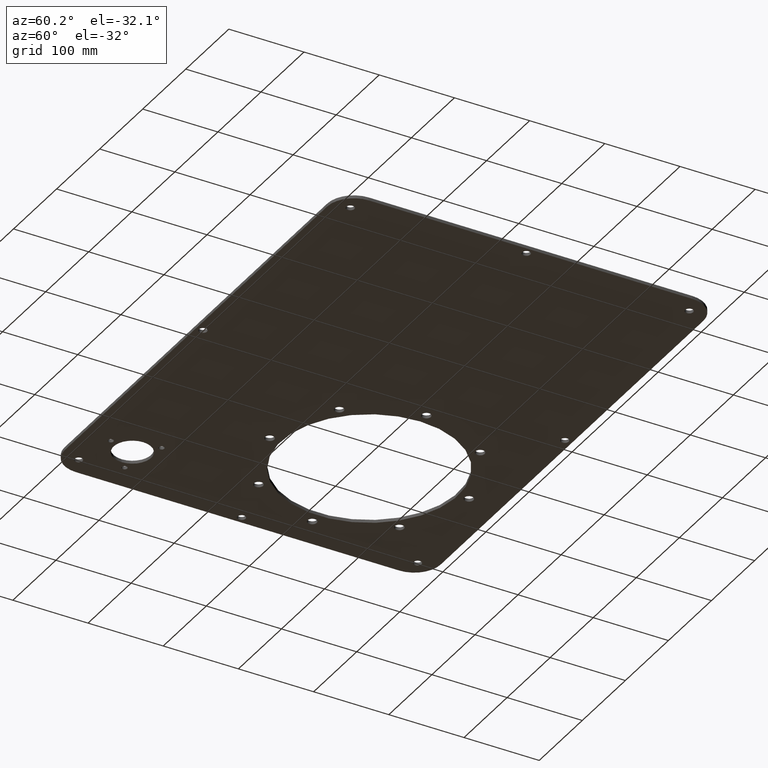
[diagram: clean part render]
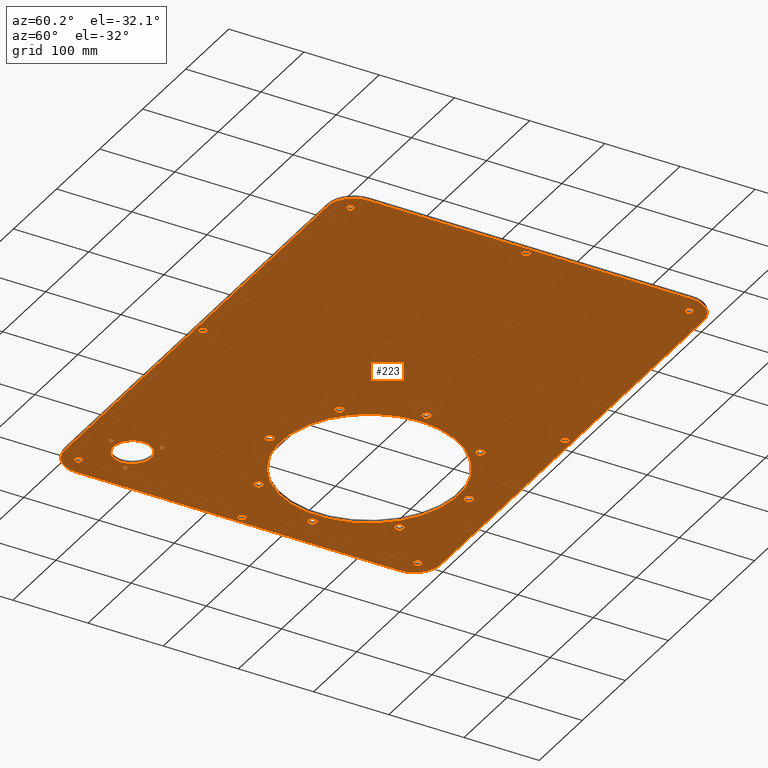
[diagram: same view with one face highlighted and labeled with its STEP entity id]
A machine part, auxiliary view. The second image highlights one B-rep face of the part: STEP entity #223.
In plain terms, the highlighted planar face has unit normal (0, 0, 1).
Its self-contained STEP definition (entity closure, byte-faithful):
#97=FACE_BOUND('',#313,.T.);
#98=FACE_BOUND('',#314,.T.);
#99=FACE_BOUND('',#315,.T.);
#100=FACE_BOUND('',#316,.T.);
#101=FACE_BOUND('',#317,.T.);
#102=FACE_BOUND('',#318,.T.);
#103=FACE_BOUND('',#319,.T.);
#104=FACE_BOUND('',#320,.T.);
#105=FACE_BOUND('',#321,.T.);
#106=FACE_BOUND('',#322,.T.);
#107=FACE_BOUND('',#323,.T.);
#108=FACE_BOUND('',#324,.T.);
#109=FACE_BOUND('',#325,.T.);
#110=FACE_BOUND('',#326,.T.);
#111=FACE_BOUND('',#327,.T.);
#112=FACE_BOUND('',#328,.T.);
#113=FACE_BOUND('',#329,.T.);
#114=FACE_BOUND('',#330,.T.);
#115=FACE_BOUND('',#331,.T.);
#116=FACE_BOUND('',#332,.T.);
#117=FACE_BOUND('',#333,.T.);
#143=CIRCLE('',#624,35.);
#145=CIRCLE('',#628,35.);
#147=CIRCLE('',#632,35.);
#150=CIRCLE('',#637,5.25);
#152=CIRCLE('',#640,5.25);
#154=CIRCLE('',#643,6.);
#156=CIRCLE('',#646,6.);
#158=CIRCLE('',#649,3.5);
#160=CIRCLE('',#652,25.);
#162=CIRCLE('',#655,6.);
#164=CIRCLE('',#658,118.);
#166=CIRCLE('',#661,3.5);
#168=CIRCLE('',#664,3.5);
#170=CIRCLE('',#667,6.);
#172=CIRCLE('',#670,5.25);
#174=CIRCLE('',#673,5.25);
#176=CIRCLE('',#676,5.25);
#178=CIRCLE('',#679,6.);
#180=CIRCLE('',#682,6.);
#182=CIRCLE('',#685,6.);
#184=CIRCLE('',#688,6.);
#186=CIRCLE('',#691,5.25);
#188=CIRCLE('',#694,5.25);
#189=CIRCLE('',#696,35.);
#192=CIRCLE('',#700,5.25);
#223=ADVANCED_FACE('',(#239,#97,#98,#99,#100,#101,#102,#103,#104,#105,#106,
#107,#108,#109,#110,#111,#112,#113,#114,#115,#116,#117),#229,.F.);
#229=PLANE('',#703);
#239=FACE_OUTER_BOUND('',#312,.T.);
#312=EDGE_LOOP('',(#437,#438,#439,#440,#441,#442,#443,#444));
#313=EDGE_LOOP('',(#445));
#314=EDGE_LOOP('',(#446));
#315=EDGE_LOOP('',(#447));
#316=EDGE_LOOP('',(#448));
#317=EDGE_LOOP('',(#449));
#318=EDGE_LOOP('',(#450));
#319=EDGE_LOOP('',(#451));
#320=EDGE_LOOP('',(#452));
#321=EDGE_LOOP('',(#453));
#322=EDGE_LOOP('',(#454));
#323=EDGE_LOOP('',(#455));
#324=EDGE_LOOP('',(#456));
#325=EDGE_LOOP('',(#457));
#326=EDGE_LOOP('',(#458));
#327=EDGE_LOOP('',(#459));
#328=EDGE_LOOP('',(#460));
#329=EDGE_LOOP('',(#461));
#330=EDGE_LOOP('',(#462));
#331=EDGE_LOOP('',(#463));
#332=EDGE_LOOP('',(#464));
#333=EDGE_LOOP('',(#465));
#437=ORIENTED_EDGE('',*,*,#524,.F.);
#438=ORIENTED_EDGE('',*,*,#586,.F.);
#439=ORIENTED_EDGE('',*,*,#543,.F.);
#440=ORIENTED_EDGE('',*,*,#540,.F.);
#441=ORIENTED_EDGE('',*,*,#537,.F.);
#442=ORIENTED_EDGE('',*,*,#534,.F.);
#443=ORIENTED_EDGE('',*,*,#531,.F.);
#444=ORIENTED_EDGE('',*,*,#528,.F.);
#445=ORIENTED_EDGE('',*,*,#585,.T.);
#446=ORIENTED_EDGE('',*,*,#583,.F.);
#447=ORIENTED_EDGE('',*,*,#581,.T.);
#448=ORIENTED_EDGE('',*,*,#579,.T.);
#449=ORIENTED_EDGE('',*,*,#577,.T.);
#450=ORIENTED_EDGE('',*,*,#575,.T.);
#451=ORIENTED_EDGE('',*,*,#573,.T.);
#452=ORIENTED_EDGE('',*,*,#571,.F.);
#453=ORIENTED_EDGE('',*,*,#569,.F.);
#454=ORIENTED_EDGE('',*,*,#567,.T.);
#455=ORIENTED_EDGE('',*,*,#565,.F.);
#456=ORIENTED_EDGE('',*,*,#563,.F.);
#457=ORIENTED_EDGE('',*,*,#561,.T.);
#458=ORIENTED_EDGE('',*,*,#559,.T.);
#459=ORIENTED_EDGE('',*,*,#557,.F.);
#460=ORIENTED_EDGE('',*,*,#555,.F.);
#461=ORIENTED_EDGE('',*,*,#553,.T.);
#462=ORIENTED_EDGE('',*,*,#551,.T.);
#463=ORIENTED_EDGE('',*,*,#549,.F.);
#464=ORIENTED_EDGE('',*,*,#547,.T.);
#465=ORIENTED_EDGE('',*,*,#589,.T.);
#466=VERTEX_POINT('',#886);
#467=VERTEX_POINT('',#887);
#470=VERTEX_POINT('',#895);
#472=VERTEX_POINT('',#901);
#474=VERTEX_POINT('',#907);
#476=VERTEX_POINT('',#913);
#478=VERTEX_POINT('',#919);
#480=VERTEX_POINT('',#925);
#483=VERTEX_POINT('',#933);
#485=VERTEX_POINT('',#938);
#487=VERTEX_POINT('',#943);
#489=VERTEX_POINT('',#948);
#491=VERTEX_POINT('',#953);
#493=VERTEX_POINT('',#958);
#495=VERTEX_POINT('',#963);
#497=VERTEX_POINT('',#968);
#499=VERTEX_POINT('',#973);
#501=VERTEX_POINT('',#978);
#503=VERTEX_POINT('',#983);
#505=VERTEX_POINT('',#988);
#507=VERTEX_POINT('',#993);
#509=VERTEX_POINT('',#998);
#511=VERTEX_POINT('',#1003);
#513=VERTEX_POINT('',#1008);
#515=VERTEX_POINT('',#1013);
#517=VERTEX_POINT('',#1018);
#519=VERTEX_POINT('',#1023);
#521=VERTEX_POINT('',#1028);
#523=VERTEX_POINT('',#1036);
#524=EDGE_CURVE('',#466,#467,#590,.T.);
#528=EDGE_CURVE('',#467,#470,#143,.T.);
#531=EDGE_CURVE('',#470,#472,#595,.T.);
#534=EDGE_CURVE('',#472,#474,#145,.T.);
#537=EDGE_CURVE('',#474,#476,#599,.T.);
#540=EDGE_CURVE('',#476,#478,#147,.T.);
#543=EDGE_CURVE('',#478,#480,#603,.T.);
#547=EDGE_CURVE('',#483,#483,#150,.T.);
#549=EDGE_CURVE('',#485,#485,#152,.T.);
#551=EDGE_CURVE('',#487,#487,#154,.T.);
#553=EDGE_CURVE('',#489,#489,#156,.T.);
#555=EDGE_CURVE('',#491,#491,#158,.T.);
#557=EDGE_CURVE('',#493,#493,#160,.T.);
#559=EDGE_CURVE('',#495,#495,#162,.T.);
#561=EDGE_CURVE('',#497,#497,#164,.T.);
#563=EDGE_CURVE('',#499,#499,#166,.T.);
#565=EDGE_CURVE('',#501,#501,#168,.T.);
#567=EDGE_CURVE('',#503,#503,#170,.T.);
#569=EDGE_CURVE('',#505,#505,#172,.T.);
#571=EDGE_CURVE('',#507,#507,#174,.T.);
#573=EDGE_CURVE('',#509,#509,#176,.T.);
#575=EDGE_CURVE('',#511,#511,#178,.T.);
#577=EDGE_CURVE('',#513,#513,#180,.T.);
#579=EDGE_CURVE('',#515,#515,#182,.T.);
#581=EDGE_CURVE('',#517,#517,#184,.T.);
#583=EDGE_CURVE('',#519,#519,#186,.T.);
#585=EDGE_CURVE('',#521,#521,#188,.T.);
#586=EDGE_CURVE('',#480,#466,#189,.T.);
#589=EDGE_CURVE('',#523,#523,#192,.T.);
#590=LINE('',#885,#606);
#595=LINE('',#900,#611);
#599=LINE('',#912,#615);
#603=LINE('',#924,#619);
#606=VECTOR('',#706,1.);
#611=VECTOR('',#719,1.);
#615=VECTOR('',#731,1.);
#619=VECTOR('',#743,1.);
#624=AXIS2_PLACEMENT_3D('',#894,#712,#713);
#628=AXIS2_PLACEMENT_3D('',#906,#724,#725);
#632=AXIS2_PLACEMENT_3D('',#918,#736,#737);
#637=AXIS2_PLACEMENT_3D('',#932,#750,#751);
#640=AXIS2_PLACEMENT_3D('',#937,#756,#757);
#643=AXIS2_PLACEMENT_3D('',#942,#762,#763);
#646=AXIS2_PLACEMENT_3D('',#947,#768,#769);
#649=AXIS2_PLACEMENT_3D('',#952,#774,#775);
#652=AXIS2_PLACEMENT_3D('',#957,#780,#781);
#655=AXIS2_PLACEMENT_3D('',#962,#786,#787);
#658=AXIS2_PLACEMENT_3D('',#967,#792,#793);
#661=AXIS2_PLACEMENT_3D('',#972,#798,#799);
#664=AXIS2_PLACEMENT_3D('',#977,#804,#805);
#667=AXIS2_PLACEMENT_3D('',#982,#810,#811);
#670=AXIS2_PLACEMENT_3D('',#987,#816,#817);
#673=AXIS2_PLACEMENT_3D('',#992,#822,#823);
#676=AXIS2_PLACEMENT_3D('',#997,#828,#829);
#679=AXIS2_PLACEMENT_3D('',#1002,#834,#835);
#682=AXIS2_PLACEMENT_3D('',#1007,#840,#841);
#685=AXIS2_PLACEMENT_3D('',#1012,#846,#847);
#688=AXIS2_PLACEMENT_3D('',#1017,#852,#853);
#691=AXIS2_PLACEMENT_3D('',#1022,#858,#859);
#694=AXIS2_PLACEMENT_3D('',#1027,#864,#865);
#696=AXIS2_PLACEMENT_3D('',#1030,#868,#869);
#700=AXIS2_PLACEMENT_3D('',#1035,#876,#877);
#703=AXIS2_PLACEMENT_3D('',#1039,#882,#883);
#706=DIRECTION('',(0.,1.,0.));
#712=DIRECTION('',(0.,0.,1.));
#713=DIRECTION('',(0.999999999999999,0.,0.));
#719=DIRECTION('',(-1.,0.,0.));
#724=DIRECTION('',(0.,0.,1.));
#725=DIRECTION('',(0.999999999999999,0.,0.));
#731=DIRECTION('',(0.,-1.,0.));
#736=DIRECTION('',(0.,0.,1.));
#737=DIRECTION('',(0.999999999999999,0.,0.));
#743=DIRECTION('',(1.,0.,0.));
#750=DIRECTION('',(0.,0.,1.));
#751=DIRECTION('',(0.999999999999996,0.,0.));
#756=DIRECTION('',(0.,0.,-1.));
#757=DIRECTION('',(-0.999999999999996,0.,0.));
#762=DIRECTION('',(0.,0.,1.));
#763=DIRECTION('',(0.,0.999999999999964,0.));
#768=DIRECTION('',(0.,0.,1.));
#769=DIRECTION('',(-1.,0.,0.));
#774=DIRECTION('',(0.,0.,-1.));
#775=DIRECTION('',(0.707106781186549,0.707106781186541,0.));
#780=DIRECTION('',(0.,0.,-1.));
#781=DIRECTION('',(-1.,0.,0.));
#786=DIRECTION('',(0.,0.,1.));
#787=DIRECTION('',(-0.707106781186545,-0.707106781186573,0.));
#792=DIRECTION('',(0.,0.,1.));
#793=DIRECTION('',(1.,0.,0.));
#798=DIRECTION('',(0.,0.,-1.));
#799=DIRECTION('',(-0.965925826289071,0.258819045102499,0.));
#804=DIRECTION('',(0.,0.,-1.));
#805=DIRECTION('',(0.25881904510253,-0.96592582628904,0.));
#810=DIRECTION('',(0.,0.,1.));
#811=DIRECTION('',(-0.707106781186545,0.707106781186573,0.));
#816=DIRECTION('',(0.,0.,-1.));
#817=DIRECTION('',(1.,0.,0.));
#822=DIRECTION('',(0.,0.,-1.));
#823=DIRECTION('',(0.999999999999996,0.,0.));
#828=DIRECTION('',(0.,0.,1.));
#829=DIRECTION('',(1.,0.,0.));
#834=DIRECTION('',(0.,0.,1.));
#835=DIRECTION('',(0.707106781186547,0.707106781186573,0.));
#840=DIRECTION('',(0.,0.,1.));
#841=DIRECTION('',(0.707106781186547,-0.707106781186573,0.));
#846=DIRECTION('',(0.,0.,1.));
#847=DIRECTION('',(0.,-0.999999999999964,0.));
#852=DIRECTION('',(0.,0.,1.));
#853=DIRECTION('',(1.,0.,0.));
#858=DIRECTION('',(0.,0.,-1.));
#859=DIRECTION('',(-0.999999999999996,0.,0.));
#864=DIRECTION('',(0.,0.,1.));
#865=DIRECTION('',(-0.999999999999996,0.,0.));
#868=DIRECTION('',(0.,0.,1.));
#869=DIRECTION('',(0.999999999999999,0.,0.));
#876=DIRECTION('',(0.,0.,1.));
#877=DIRECTION('',(0.999999999999996,0.,0.));
#882=DIRECTION('',(0.,0.,1.));
#883=DIRECTION('',(1.,0.,0.));
#885=CARTESIAN_POINT('',(340.,-2665.,0.));
#886=CARTESIAN_POINT('',(340.,-2665.,0.));
#887=CARTESIAN_POINT('',(340.,-2235.,0.));
#894=CARTESIAN_POINT('',(305.,-2235.,0.));
#895=CARTESIAN_POINT('',(305.,-2200.,0.));
#900=CARTESIAN_POINT('',(305.,-2200.,0.));
#901=CARTESIAN_POINT('',(-305.,-2200.,0.));
#906=CARTESIAN_POINT('',(-305.,-2235.,0.));
#907=CARTESIAN_POINT('',(-340.,-2235.,0.));
#912=CARTESIAN_POINT('',(-340.,-2235.,0.));
#913=CARTESIAN_POINT('',(-340.,-2665.,0.));
#918=CARTESIAN_POINT('',(-305.,-2665.,0.));
#919=CARTESIAN_POINT('',(-305.,-2700.,0.));
#924=CARTESIAN_POINT('',(-305.,-2700.,0.));
#925=CARTESIAN_POINT('',(305.,-2700.,0.));
#932=CARTESIAN_POINT('',(-330.5,-2450.,0.));
#933=CARTESIAN_POINT('',(-325.25,-2450.,0.));
#937=CARTESIAN_POINT('',(315.370057685089,-2224.62994231491,0.));
#938=CARTESIAN_POINT('',(310.120057685089,-2224.62994231491,0.));
#942=CARTESIAN_POINT('',(-164.999999999997,-2242.5,0.));
#943=CARTESIAN_POINT('',(-164.999999999997,-2236.5,0.));
#947=CARTESIAN_POINT('',(-297.5,-2375.,0.));
#948=CARTESIAN_POINT('',(-303.5,-2375.,0.));
#952=CARTESIAN_POINT('',(-245.251262658472,-2605.25126265847,0.));
#953=CARTESIAN_POINT('',(-242.776388924319,-2602.77638892432,0.));
#957=CARTESIAN_POINT('',(-270.,-2630.,0.));
#958=CARTESIAN_POINT('',(-295.,-2630.,0.));
#962=CARTESIAN_POINT('',(-258.69164850722,-2468.69164850722,0.));
#963=CARTESIAN_POINT('',(-262.934289194339,-2472.93428919434,0.));
#967=CARTESIAN_POINT('',(-165.,-2375.,0.));
#968=CARTESIAN_POINT('',(-47.,-2375.,0.));
#972=CARTESIAN_POINT('',(-303.807403920117,-2620.94133342141,0.));
#973=CARTESIAN_POINT('',(-307.188144312129,-2620.03546676355,0.));
#977=CARTESIAN_POINT('',(-260.941333421412,-2663.80740392012,0.));
#978=CARTESIAN_POINT('',(-260.035466763553,-2667.18814431213,0.));
#982=CARTESIAN_POINT('',(-258.691648507218,-2281.30835149278,0.));
#983=CARTESIAN_POINT('',(-262.934289194337,-2277.06571080566,0.));
#987=CARTESIAN_POINT('',(0.,-2690.5,0.));
#988=CARTESIAN_POINT('',(5.25,-2690.5,0.));
#992=CARTESIAN_POINT('',(-315.370057685089,-2675.37005768509,0.));
#993=CARTESIAN_POINT('',(-310.120057685089,-2675.37005768509,0.));
#997=CARTESIAN_POINT('',(0.,-2209.5,0.));
#998=CARTESIAN_POINT('',(5.25,-2209.5,0.));
#1002=CARTESIAN_POINT('',(-71.308351492783,-2281.30835149278,0.));
#1003=CARTESIAN_POINT('',(-67.0657108056637,-2277.06571080566,0.));
#1007=CARTESIAN_POINT('',(-71.3083514927806,-2468.69164850722,0.));
#1008=CARTESIAN_POINT('',(-67.0657108056613,-2472.93428919434,0.));
#1012=CARTESIAN_POINT('',(-165.000000000572,-2507.49999999996,0.));
#1013=CARTESIAN_POINT('',(-165.000000000572,-2513.49999999996,0.));
#1017=CARTESIAN_POINT('',(-32.499999999997,-2375.,0.));
#1018=CARTESIAN_POINT('',(-26.499999999997,-2375.,0.));
#1022=CARTESIAN_POINT('',(330.5,-2450.,0.));
#1023=CARTESIAN_POINT('',(325.25,-2450.,0.));
#1027=CARTESIAN_POINT('',(315.370057685089,-2675.37005768509,0.));
#1028=CARTESIAN_POINT('',(310.120057685089,-2675.37005768509,0.));
#1030=CARTESIAN_POINT('',(305.,-2665.,0.));
#1035=CARTESIAN_POINT('',(-315.370057685089,-2224.62994231491,0.));
#1036=CARTESIAN_POINT('',(-310.120057685089,-2224.62994231491,0.));
#1039=CARTESIAN_POINT('',(305.,-2235.,0.));